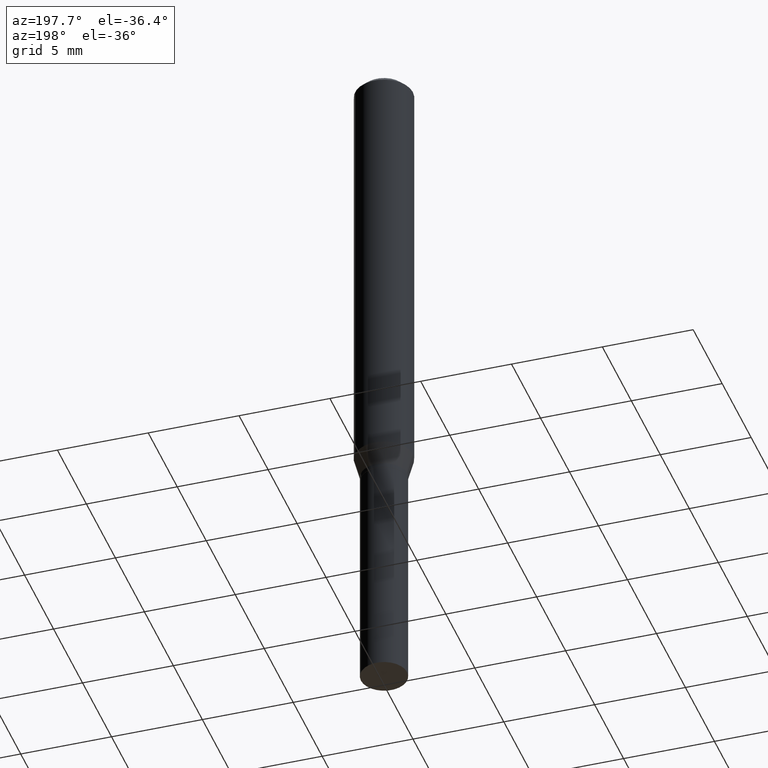
[diagram: clean part render]
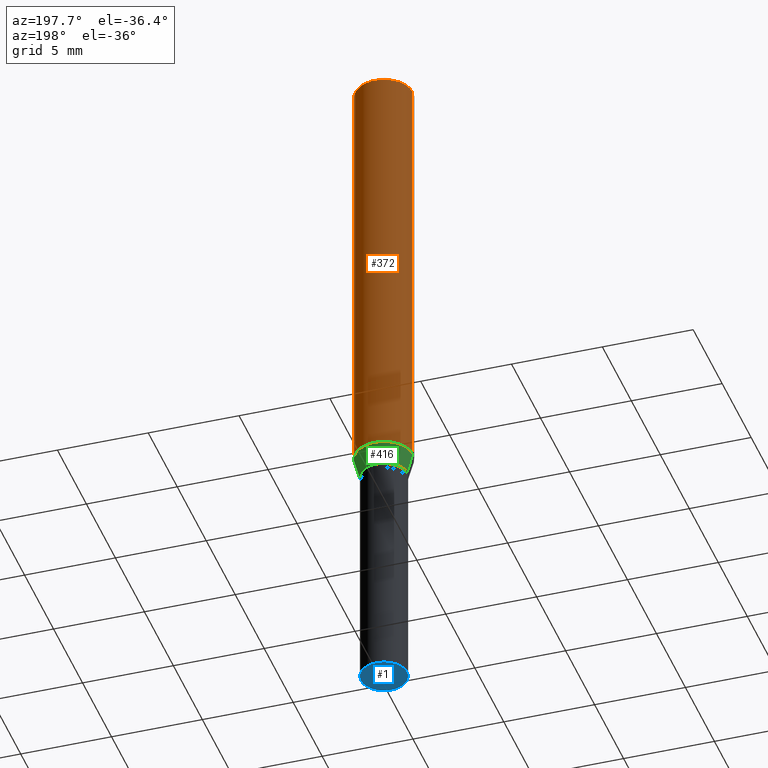
[diagram: same view with three faces highlighted in distinct colors, each labeled with its STEP entity id]
A machine part, auxiliary view with three faces highlighted in distinct colors.
Their STEP definitions:

[orange] entity #372 — the highlighted cylindrical surface (edge-blend (fillet) strip) has radius 1.5875 mm, axis along (-0, 0, 1).
#2 = ORIENTED_EDGE ( 'NONE', *, *, #360, .F. ) ;
#15 = CARTESIAN_POINT ( 'NONE',  ( 0.06250000000000000000, -4.888073874380388472E-16, -0.01499999999999999944 ) ) ;
#22 = AXIS2_PLACEMENT_3D ( 'NONE', #26, #464, #147 ) ;
#26 = CARTESIAN_POINT ( 'NONE',  ( 3.668203209277705088E-31, -5.237222008264718399E-17, -0.01499999999999999944 ) ) ;
#35 = EDGE_CURVE ( 'NONE', #201, #61, #357, .T. ) ;
#61 = VERTEX_POINT ( 'NONE', #231 ) ;
#70 = VERTEX_POINT ( 'NONE', #191 ) ;
#71 = EDGE_CURVE ( 'NONE', #61, #70, #330, .T. ) ;
#105 = ORIENTED_EDGE ( 'NONE', *, *, #128, .F. ) ;
#107 = CARTESIAN_POINT ( 'NONE',  ( -0.06250000000000000000, 4.440892098500626162E-16, -3.074334431409316114E-30 ) ) ;
#113 = AXIS2_PLACEMENT_3D ( 'NONE', #227, #194, #332 ) ;
#118 = DIRECTION ( 'NONE',  ( 1.000000000000000000, -6.982962677686266711E-15, 4.876176775795935793E-29 ) ) ;
#128 = EDGE_CURVE ( 'NONE', #426, #70, #135, .T. ) ;
#135 = CIRCLE ( 'NONE', #22, 0.06250000000000000000 ) ;
#147 = DIRECTION ( 'NONE',  ( 1.000000000000000000, -6.982962677686266711E-15, 0.000000000000000000 ) ) ;
#151 = DIRECTION ( 'NONE',  ( -2.445468806185136877E-29, 3.491481338843145188E-15, 1.000000000000000000 ) ) ;
#191 = CARTESIAN_POINT ( 'NONE',  ( -0.06250000000000000000, -1.228940251979611102E-15, -0.01499999999999999944 ) ) ;
#194 = DIRECTION ( 'NONE',  ( -2.445468806185136597E-29, 3.491481338843145583E-15, 1.000000000000000000 ) ) ;
#201 = VERTEX_POINT ( 'NONE', #405 ) ;
#227 = CARTESIAN_POINT ( 'NONE',  ( 2.306931445210689436E-29, -3.293686703576700358E-15, -0.9433493649053894536 ) ) ;
#231 = CARTESIAN_POINT ( 'NONE',  ( -0.06250000000000000000, -2.849597493726637742E-15, -0.9433493649053894536 ) ) ;
#237 = AXIS2_PLACEMENT_3D ( 'NONE', #394, #440, #118 ) ;
#265 = EDGE_LOOP ( 'NONE', ( #320, #385, #105, #2 ) ) ;
#309 = DIRECTION ( 'NONE',  ( -2.445468806185136877E-29, 3.491481338843145188E-15, 1.000000000000000000 ) ) ;
#311 = VECTOR ( 'NONE', #309, 39.37007874015748143 ) ;
#320 = ORIENTED_EDGE ( 'NONE', *, *, #35, .T. ) ;
#330 = LINE ( 'NONE', #107, #458 ) ;
#332 = DIRECTION ( 'NONE',  ( 1.000000000000000000, -6.982962677686262766E-15, 0.000000000000000000 ) ) ;
#357 = CIRCLE ( 'NONE', #113, 0.06250000000000000000 ) ;
#360 = EDGE_CURVE ( 'NONE', #201, #426, #438, .T. ) ;
#362 = CARTESIAN_POINT ( 'NONE',  ( 0.06250000000000000000, -4.364351673553916694E-16, 3.047610484872459871E-30 ) ) ;
#372 = ADVANCED_FACE ( 'NONE', ( #392 ), #434, .T. ) ;
#385 = ORIENTED_EDGE ( 'NONE', *, *, #71, .T. ) ;
#392 = FACE_OUTER_BOUND ( 'NONE', #265, .T. ) ;
#394 = CARTESIAN_POINT ( 'NONE',  ( 0.000000000000000000, 0.000000000000000000, 0.000000000000000000 ) ) ;
#405 = CARTESIAN_POINT ( 'NONE',  ( 0.06250000000000000000, -3.730121870932091633E-15, -0.9433493649053894536 ) ) ;
#426 = VERTEX_POINT ( 'NONE', #15 ) ;
#434 = CYLINDRICAL_SURFACE ( 'NONE', #237, 0.06250000000000000000 ) ;
#438 = LINE ( 'NONE', #362, #311 ) ;
#440 = DIRECTION ( 'NONE',  ( -2.445468806185136597E-29, 3.491481338843145583E-15, 1.000000000000000000 ) ) ;
#458 = VECTOR ( 'NONE', #151, 39.37007874015748143 ) ;
#464 = DIRECTION ( 'NONE',  ( -2.445468806185136597E-29, 3.491481338843145583E-15, 1.000000000000000000 ) ) ;

[blue] entity #1 — the highlighted planar face has unit normal (-0, 0, 1).
#1 = ADVANCED_FACE ( 'NONE', ( #44 ), #55, .F. ) ;
#32 = CARTESIAN_POINT ( 'NONE',  ( 0.05000000000000000278, -5.586370142149032301E-15, -1.500000000000000222 ) ) ;
#44 = FACE_OUTER_BOUND ( 'NONE', #238, .T. ) ;
#47 = VERTEX_POINT ( 'NONE', #32 ) ;
#53 = DIRECTION ( 'NONE',  ( -2.438088387897960049E-29, 3.491481338843145188E-15, 1.000000000000000000 ) ) ;
#55 = PLANE ( 'NONE',  #172 ) ;
#156 = DIRECTION ( 'NONE',  ( 1.000000000000000000, -6.982962677686274599E-15, 0.000000000000000000 ) ) ;
#165 = CARTESIAN_POINT ( 'NONE',  ( 3.576687321579069994E-29, -5.368277968210015545E-15, -1.500000000000000222 ) ) ;
#172 = AXIS2_PLACEMENT_3D ( 'NONE', #165, #53, #343 ) ;
#181 = CARTESIAN_POINT ( 'NONE',  ( -0.05000000000000000278, -4.009080305673882063E-15, -1.500000000000000222 ) ) ;
#197 = CARTESIAN_POINT ( 'NONE',  ( 3.668203209277704895E-29, -5.237222008264718177E-15, -1.500000000000000222 ) ) ;
#214 = ORIENTED_EDGE ( 'NONE', *, *, #401, .F. ) ;
#222 = DIRECTION ( 'NONE',  ( -2.445468806185136597E-29, 3.491481338843145583E-15, 1.000000000000000000 ) ) ;
#228 = AXIS2_PLACEMENT_3D ( 'NONE', #197, #334, #156 ) ;
#238 = EDGE_LOOP ( 'NONE', ( #340, #214 ) ) ;
#245 = EDGE_CURVE ( 'NONE', #47, #273, #390, .T. ) ;
#268 = CIRCLE ( 'NONE', #228, 0.05000000000000000278 ) ;
#273 = VERTEX_POINT ( 'NONE', #181 ) ;
#293 = DIRECTION ( 'NONE',  ( 1.000000000000000000, -6.982962677686274599E-15, 0.000000000000000000 ) ) ;
#307 = AXIS2_PLACEMENT_3D ( 'NONE', #377, #222, #293 ) ;
#334 = DIRECTION ( 'NONE',  ( -2.445468806185136597E-29, 3.491481338843145583E-15, 1.000000000000000000 ) ) ;
#340 = ORIENTED_EDGE ( 'NONE', *, *, #245, .F. ) ;
#343 = DIRECTION ( 'NONE',  ( 1.000000000000000000, -6.982962677686265922E-15, 4.876176775795935793E-29 ) ) ;
#377 = CARTESIAN_POINT ( 'NONE',  ( 3.668203209277704895E-29, -5.237222008264718177E-15, -1.500000000000000222 ) ) ;
#390 = CIRCLE ( 'NONE', #307, 0.05000000000000000278 ) ;
#401 = EDGE_CURVE ( 'NONE', #273, #47, #268, .T. ) ;

[green] entity #416 — the highlighted conical surface has half-angle 15 deg.
#9 = VECTOR ( 'NONE', #407, 39.37007874015748854 ) ;
#11 = CARTESIAN_POINT ( 'NONE',  ( -0.05000000000000006523, -3.101295157574663525E-15, -0.9900000000000001021 ) ) ;
#19 = CARTESIAN_POINT ( 'NONE',  ( 0.05000000000000006523, -3.805714659339028452E-15, -0.9900000000000001021 ) ) ;
#27 = DIRECTION ( 'NONE',  ( 1.000000000000000000, -6.982962677686265133E-15, 0.000000000000000000 ) ) ;
#35 = EDGE_CURVE ( 'NONE', #201, #61, #357, .T. ) ;
#61 = VERTEX_POINT ( 'NONE', #231 ) ;
#64 = DIRECTION ( 'NONE',  ( -2.445468806185136597E-29, 3.491481338843145583E-15, 1.000000000000000000 ) ) ;
#68 = EDGE_LOOP ( 'NONE', ( #282, #219, #213, #96 ) ) ;
#96 = ORIENTED_EDGE ( 'NONE', *, *, #220, .F. ) ;
#113 = AXIS2_PLACEMENT_3D ( 'NONE', #227, #194, #332 ) ;
#115 = CARTESIAN_POINT ( 'NONE',  ( -0.05000000000000006523, -2.975446325650650633E-15, -0.9900000000000001021 ) ) ;
#155 = CONICAL_SURFACE ( 'NONE', #459, 0.05000000000000006523, 0.2617993877991499629 ) ;
#168 = CARTESIAN_POINT ( 'NONE',  ( 0.05000000000000006523, -3.805714659339028452E-15, -0.9900000000000001021 ) ) ;
#194 = DIRECTION ( 'NONE',  ( -2.445468806185136597E-29, 3.491481338843145583E-15, 1.000000000000000000 ) ) ;
#198 = EDGE_CURVE ( 'NONE', #363, #61, #272, .T. ) ;
#201 = VERTEX_POINT ( 'NONE', #405 ) ;
#213 = ORIENTED_EDGE ( 'NONE', *, *, #35, .F. ) ;
#219 = ORIENTED_EDGE ( 'NONE', *, *, #198, .T. ) ;
#220 = EDGE_CURVE ( 'NONE', #291, #201, #279, .T. ) ;
#225 = FACE_OUTER_BOUND ( 'NONE', #68, .T. ) ;
#227 = CARTESIAN_POINT ( 'NONE',  ( 2.306931445210689436E-29, -3.293686703576700358E-15, -0.9433493649053894536 ) ) ;
#231 = CARTESIAN_POINT ( 'NONE',  ( -0.06250000000000000000, -2.849597493726637742E-15, -0.9433493649053894536 ) ) ;
#272 = LINE ( 'NONE', #11, #395 ) ;
#275 = DIRECTION ( 'NONE',  ( -0.2588190451025212391, 5.211531920934549464E-15, 0.9659258262890679791 ) ) ;
#279 = LINE ( 'NONE', #168, #9 ) ;
#282 = ORIENTED_EDGE ( 'NONE', *, *, #316, .T. ) ;
#291 = VERTEX_POINT ( 'NONE', #19 ) ;
#298 = AXIS2_PLACEMENT_3D ( 'NONE', #427, #64, #422 ) ;
#301 = DIRECTION ( 'NONE',  ( -2.445468806185136597E-29, 3.491481338843145583E-15, 1.000000000000000000 ) ) ;
#316 = EDGE_CURVE ( 'NONE', #291, #363, #364, .T. ) ;
#332 = DIRECTION ( 'NONE',  ( 1.000000000000000000, -6.982962677686262766E-15, 0.000000000000000000 ) ) ;
#355 = CARTESIAN_POINT ( 'NONE',  ( 2.421014118123285332E-29, -3.456566525454714328E-15, -0.9900000000000001021 ) ) ;
#357 = CIRCLE ( 'NONE', #113, 0.06250000000000000000 ) ;
#363 = VERTEX_POINT ( 'NONE', #115 ) ;
#364 = CIRCLE ( 'NONE', #298, 0.05000000000000006523 ) ;
#395 = VECTOR ( 'NONE', #275, 39.37007874015748854 ) ;
#405 = CARTESIAN_POINT ( 'NONE',  ( 0.06250000000000000000, -3.730121870932091633E-15, -0.9433493649053894536 ) ) ;
#407 = DIRECTION ( 'NONE',  ( 0.2588190451025212391, 1.565188264969622362E-15, 0.9659258262890679791 ) ) ;
#416 = ADVANCED_FACE ( 'NONE', ( #225 ), #155, .T. ) ;
#422 = DIRECTION ( 'NONE',  ( 1.000000000000000000, -6.982962677686265133E-15, 0.000000000000000000 ) ) ;
#427 = CARTESIAN_POINT ( 'NONE',  ( 2.421014118123285332E-29, -3.456566525454714328E-15, -0.9900000000000001021 ) ) ;
#459 = AXIS2_PLACEMENT_3D ( 'NONE', #355, #301, #27 ) ;